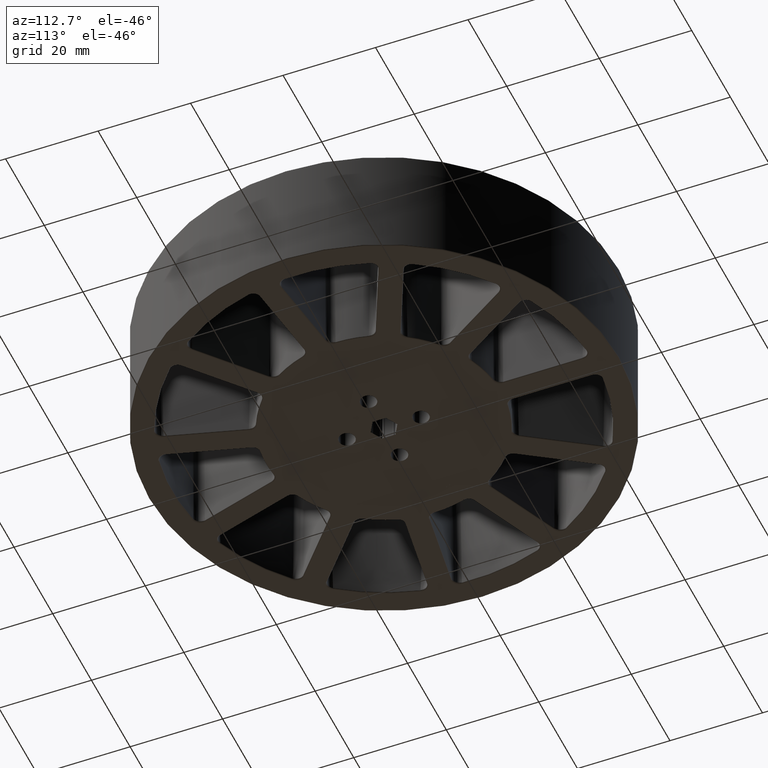
[diagram: clean part render]
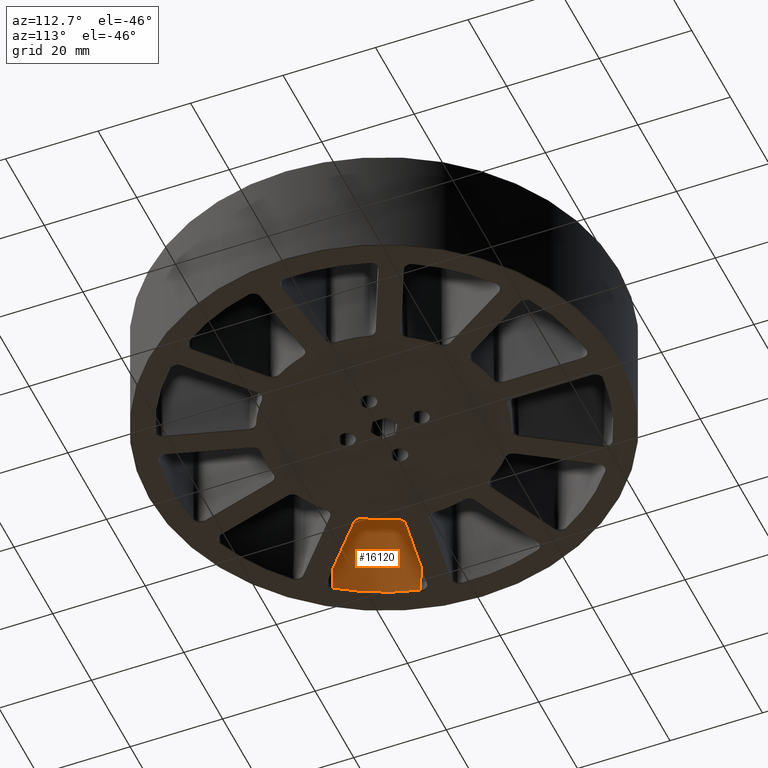
[diagram: same view with one face highlighted and labeled with its STEP entity id]
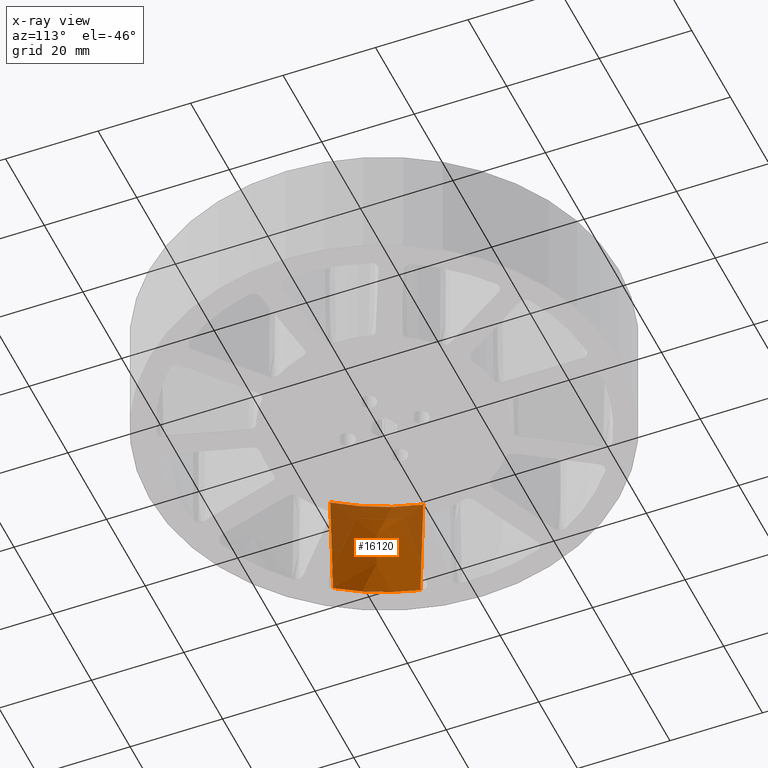
[diagram: x-ray of the same camera — body ghosted, the highlighted face saturated]
A machine part, auxiliary view. The second image highlights one B-rep face of the part: STEP entity #16120.
The next image is the same camera in x-ray: the body ghosted, the highlighted face saturated — about 29% of this face is hidden behind the body in this view.
In plain terms, the highlighted conical surface has half-angle 1 deg.
Its self-contained STEP definition (entity closure, byte-faithful):
#7 = DIRECTION ( 'NONE',  ( -1.000000000000000000, 0.0000000000000000000, 0.0000000000000000000 ) ) ;
#230 = CARTESIAN_POINT ( 'NONE',  ( -37.26631318902823153, -27.23738988048119580, 12.45043291123506890 ) ) ;
#389 = ORIENTED_EDGE ( 'NONE', *, *, #9128, .T. ) ;
#423 = ORIENTED_EDGE ( 'NONE', *, *, #11717, .T. ) ;
#490 = ORIENTED_EDGE ( 'NONE', *, *, #22338, .T. ) ;
#498 = ORIENTED_EDGE ( 'NONE', *, *, #17323, .T. ) ;
#1440 = CARTESIAN_POINT ( 'NONE',  ( 0.0000000000000000000, 0.0000000000000000000, -12.44156708876491635 ) ) ;
#1956 = EDGE_LOOP ( 'NONE', ( #389, #423, #490, #498 ) ) ;
#2030 = AXIS2_PLACEMENT_3D ( 'NONE', #1440, #10495, #19146 ) ;
#2053 = CIRCLE ( 'NONE', #2030, 45.72451096324519426 ) ;
#4159 = FACE_OUTER_BOUND ( 'NONE', #1956, .T. ) ;
#4167 = CARTESIAN_POINT ( 'NONE',  ( -44.92266616219614406, -10.37444029284521818, 9.356778044382764392 ) ) ;
#4818 = CARTESIAN_POINT ( 'NONE',  ( -37.21844160683532721, -26.74697917325599406, -6.260192807226186318 ) ) ;
#5539 = VERTEX_POINT ( 'NONE', #13138 ) ;
#6398 = CARTESIAN_POINT ( 'NONE',  ( -44.69892974039456135, -10.53313791375961195, -1.062390363368399537 ) ) ;
#6628 = CIRCLE ( 'NONE', #24346, 46.15900243943838888 ) ;
#7046 = CARTESIAN_POINT ( 'NONE',  ( -37.24829884567403582, -27.05011340840338363, 5.294225530935803725 ) ) ;
#8252 = VERTEX_POINT ( 'NONE', #14722 ) ;
#8633 = CARTESIAN_POINT ( 'NONE',  ( -44.49540782096575242, -10.67678036700129773, -10.49792821816643595 ) ) ;
#8920 = DIRECTION ( 'NONE',  ( -0.0000000000000000000, -0.0000000000000000000, 1.000000000000000000 ) ) ;
#9128 = EDGE_CURVE ( 'NONE', #8252, #10139, #27092, .T. ) ;
#9286 = CARTESIAN_POINT ( 'NONE',  ( -37.26387306420410539, -27.21189355771438656, 11.47565375460269443 ) ) ;
#9969 = CONICAL_SURFACE ( 'NONE', #17779, 45.71999999999999886, 0.01745329251994333364 ) ;
#10139 = VERTEX_POINT ( 'NONE', #15793 ) ;
#10495 = DIRECTION ( 'NONE',  ( 0.0000000000000000000, 0.0000000000000000000, -1.000000000000000000 ) ) ;
#11260 = CARTESIAN_POINT ( 'NONE',  ( 0.0000000000000000000, 0.0000000000000000000, 12.45043291123499785 ) ) ;
#11717 = EDGE_CURVE ( 'NONE', #10139, #5539, #2053, .T. ) ;
#12330 = VERTEX_POINT ( 'NONE', #21748 ) ;
#13138 = CARTESIAN_POINT ( 'NONE',  ( -44.45339922186942516, -10.70636261524096433, -12.44156708876493056 ) ) ;
#13143 = CARTESIAN_POINT ( 'NONE',  ( 0.0000000000000000000, 0.0000000000000000000, -12.69999999999999929 ) ) ;
#13150 = CARTESIAN_POINT ( 'NONE',  ( -44.98889101509643496, -10.32730320247518385, 12.45043291123506890 ) ) ;
#13792 = CARTESIAN_POINT ( 'NONE',  ( -37.21032274627452097, -26.66576390262459739, -9.350881219568572433 ) ) ;
#14722 = CARTESIAN_POINT ( 'NONE',  ( -37.26631318902823153, -27.23738988048119580, 12.45043291123506890 ) ) ;
#15315 = CARTESIAN_POINT ( 'NONE',  ( -44.78985257265678399, -10.46868504061693983, 3.169475658939513885 ) ) ;
#15793 = CARTESIAN_POINT ( 'NONE',  ( -37.20211463014662456, -26.58446106042700663, -12.44156708876492701 ) ) ;
#15927 = CARTESIAN_POINT ( 'NONE',  ( -37.23746820844557703, -26.93919175771945973, 1.062359470470773060 ) ) ;
#16120 = ADVANCED_FACE ( 'NONE', ( #4159 ), #9969, .F. ) ;
#17323 = EDGE_CURVE ( 'NONE', #12330, #8252, #6628, .T. ) ;
#17395 = CARTESIAN_POINT ( 'NONE',  ( -44.51639368494932114, -10.66198774812081496, -9.526108407397474664 ) ) ;
#17664 = DIRECTION ( 'NONE',  ( -1.000000000000000000, 0.0000000000000000000, 0.0000000000000000000 ) ) ;
#17779 = AXIS2_PLACEMENT_3D ( 'NONE', #13143, #8920, #17664 ) ;
#18003 = CARTESIAN_POINT ( 'NONE',  ( -37.26142435268327802, -27.18638880617933751, 10.50087483985303827 ) ) ;
#19146 = DIRECTION ( 'NONE',  ( -1.000000000000000000, 0.0000000000000000000, 0.0000000000000000000 ) ) ;
#19474 = CARTESIAN_POINT ( 'NONE',  ( -44.45339922186942516, -10.70636261524096433, -12.44156708876493056 ) ) ;
#19891 = DIRECTION ( 'NONE',  ( -0.0000000000000000000, -0.0000000000000000000, 1.000000000000000000 ) ) ;
#21748 = CARTESIAN_POINT ( 'NONE',  ( -44.98889101509643496, -10.32730320247518385, 12.45043291123506890 ) ) ;
#22307 = CARTESIAN_POINT ( 'NONE',  ( -37.20211463014662456, -26.58446106042700663, -12.44156708876492701 ) ) ;
#22338 = EDGE_CURVE ( 'NONE', #5539, #12330, #26122, .T. ) ;
#23768 = CARTESIAN_POINT ( 'NONE',  ( -44.85632051240011009, -10.42156761607415127, 6.263125612137177889 ) ) ;
#24346 = AXIS2_PLACEMENT_3D ( 'NONE', #11260, #19891, #7 ) ;
#24372 = CARTESIAN_POINT ( 'NONE',  ( -37.22647232377692461, -26.82810794706747970, -3.169501897896196407 ) ) ;
#25852 = CARTESIAN_POINT ( 'NONE',  ( -44.60777808261395450, -10.59757226504449079, -5.294251757834467220 ) ) ;
#26122 = B_SPLINE_CURVE_WITH_KNOTS ( 'NONE', 3,
 ( #19474, #27908, #8633, #17395, #25852, #6398, #15315, #23768, #4167, #13150 ),
 .UNSPECIFIED., .F., .F.,
 ( 4, 3, 3, 4 ),
 ( 0.0002585232296160811720, 0.003175000000303740844, 0.01587500003731460996, 0.02515916789301200426 ),
 .UNSPECIFIED. ) ;
#26440 = CARTESIAN_POINT ( 'NONE',  ( -37.25896702100489222, -27.16087559349319491, 9.526096168364908578 ) ) ;
#27092 = B_SPLINE_CURVE_WITH_KNOTS ( 'NONE', 3,
 ( #230, #9286, #18003, #26440, #7046, #15927, #24372, #4818, #13792, #22307 ),
 .UNSPECIFIED., .F., .F.,
 ( 4, 3, 3, 4 ),
 ( 0.0002496532194765752229, 0.003175000000285452088, 0.01587500003629858242, 0.02515029788241554196 ),
 .UNSPECIFIED. ) ;
#27908 = CARTESIAN_POINT ( 'NONE',  ( -44.47440968268035277, -10.69157199080133758, -11.46974777910458876 ) ) ;